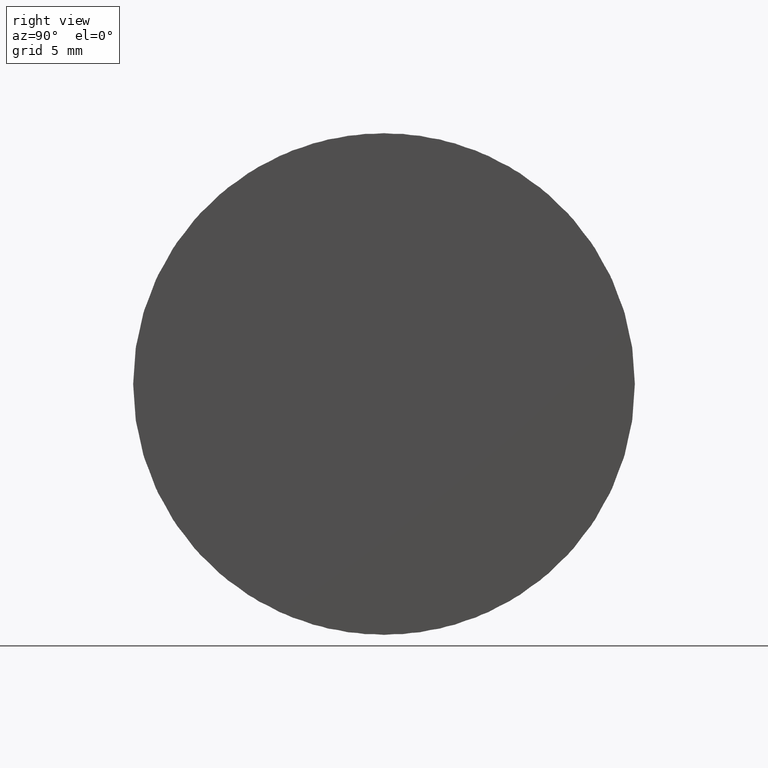
[diagram: clean part render]
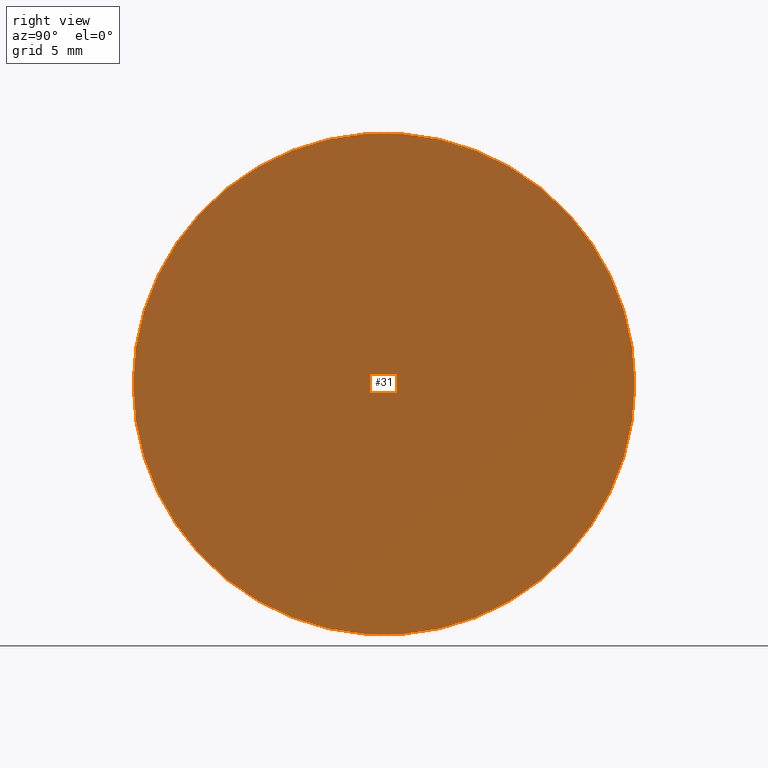
[diagram: same view with one face highlighted and labeled with its STEP entity id]
A machine part, right view. The second image highlights one B-rep face of the part: STEP entity #31.
In plain terms, the highlighted planar face has unit normal (1, 0, -0).
Its self-contained STEP definition (entity closure, byte-faithful):
#16 = DIRECTION ( 'NONE',  ( 1.000000000000000000, 1.224646799147351975E-16, -0.000000000000000000 ) ) ;
#20 = CARTESIAN_POINT ( 'NONE',  ( -28.05941295107895428, 45.19878037169511487, 0.000000000000000000 ) ) ;
#30 = DIRECTION ( 'NONE',  ( 0.000000000000000000, 1.000000000000000000, 0.000000000000000000 ) ) ;
#31 = ADVANCED_FACE ( 'NONE', ( #161 ), #371, .T. ) ;
#37 = VERTEX_POINT ( 'NONE', #20 ) ;
#56 = CARTESIAN_POINT ( 'NONE',  ( -28.05941295107895428, 19.79878037169513405, 1.555301434917137841E-15 ) ) ;
#65 = EDGE_LOOP ( 'NONE', ( #341, #92 ) ) ;
#92 = ORIENTED_EDGE ( 'NONE', *, *, #256, .T. ) ;
#94 = CIRCLE ( 'NONE', #163, 12.69999999999998863 ) ;
#133 = CIRCLE ( 'NONE', #142, 12.69999999999998863 ) ;
#142 = AXIS2_PLACEMENT_3D ( 'NONE', #278, #16, #311 ) ;
#147 = CARTESIAN_POINT ( 'NONE',  ( -28.05941295107895428, 32.49878037169512623, 0.000000000000000000 ) ) ;
#148 = VERTEX_POINT ( 'NONE', #56 ) ;
#161 = FACE_OUTER_BOUND ( 'NONE', #65, .T. ) ;
#163 = AXIS2_PLACEMENT_3D ( 'NONE', #147, #357, #30 ) ;
#194 = CARTESIAN_POINT ( 'NONE',  ( -28.05941295107896494, 45.19878037169511487, 0.000000000000000000 ) ) ;
#248 = DIRECTION ( 'NONE',  ( 1.000000000000000000, 1.224646799147351975E-16, -0.000000000000000000 ) ) ;
#256 = EDGE_CURVE ( 'NONE', #148, #37, #94, .T. ) ;
#278 = CARTESIAN_POINT ( 'NONE',  ( -28.05941295107895428, 32.49878037169512623, 0.000000000000000000 ) ) ;
#279 = DIRECTION ( 'NONE',  ( -1.224646799147351975E-16, 1.000000000000000000, 0.000000000000000000 ) ) ;
#311 = DIRECTION ( 'NONE',  ( 0.000000000000000000, 1.000000000000000000, 0.000000000000000000 ) ) ;
#315 = EDGE_CURVE ( 'NONE', #37, #148, #133, .T. ) ;
#326 = AXIS2_PLACEMENT_3D ( 'NONE', #194, #248, #279 ) ;
#341 = ORIENTED_EDGE ( 'NONE', *, *, #315, .T. ) ;
#357 = DIRECTION ( 'NONE',  ( 1.000000000000000000, 1.224646799147351975E-16, -0.000000000000000000 ) ) ;
#371 = PLANE ( 'NONE',  #326 ) ;